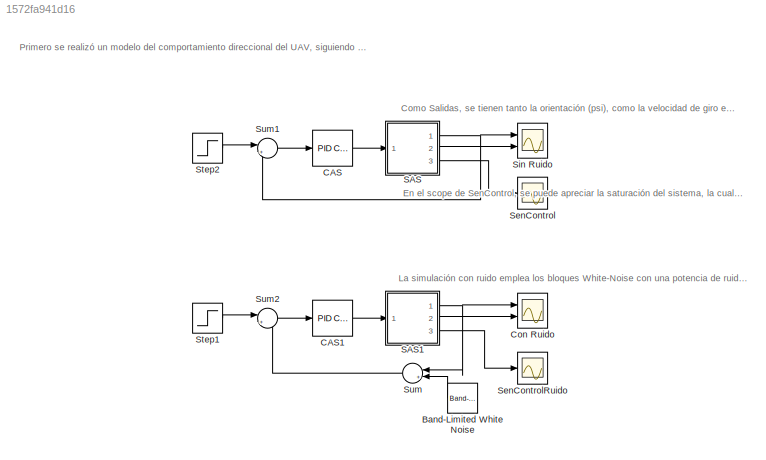
MODEL slx_1572fa941d16
KIND model
CONFIG AbsTol = auto
CONFIG EnableMultiTasking = off
CONFIG FixedStep = auto
CONFIG MaxStep = auto
CONFIG MinStep = auto
CONFIG RelTol = 1e-3
CONFIG SampleTimeConstraint = Unconstrained
CONFIG SolverName = VariableStepAuto
CONFIG StartTime = 0.0
CONFIG StopTime = 15
BLOCK [Reference] Band-Limited White Noise  REF=simulink/Sources/Band-Limited
White Noise
  Ports = [0, 1]
  SourceBlock = simulink/Sources/Band-Limited\nWhite Noise
  SourceProductBaseCode = SL
  SourceType = Band-Limited White Noise.
BLOCK [Reference] CAS  REF=slpidlib/PID Controller
  Ports = [1, 1]
  SourceBlock = slpidlib/PID Controller
  SourceProductBaseCode = SL
  SourceType = PID 1dof
BLOCK [Reference] CAS1  REF=slpidlib/PID Controller
  Ports = [1, 1]
  SourceBlock = slpidlib/PID Controller
  SourceProductBaseCode = SL
  SourceType = PID 1dof
BLOCK [Scope] Con Ruido
  Floating = off
  NumInputPorts = 2
  Ports = [2]
  ScopeSpecificationString = Simulink.scopes.TimeScopeBlockCfg('CurrentConfiguration', extmgr.ConfigurationSet(extmgr.Configuration('Core','General UI',true),extmgr.Configuration('Core','Source UI',true),extmgr.Configuration('Sources','WiredSimulink',true,'DataLoggingVariableName','ScopeData1'),extmgr.Configuration('Visuals','Time Domain',true,'PlotType','Line','SerializedDisplays',{struct('MinYLimReal','-17.09732','MaxYLimRe...<+2087ch>
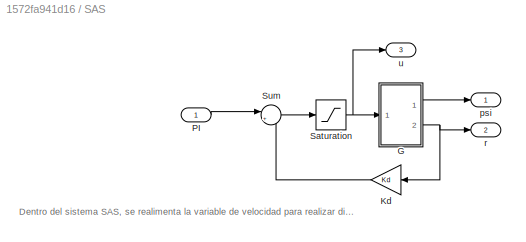
BLOCK [SubSystem] SAS
  Ports = [1, 3]
  RequestExecContextInheritance = off
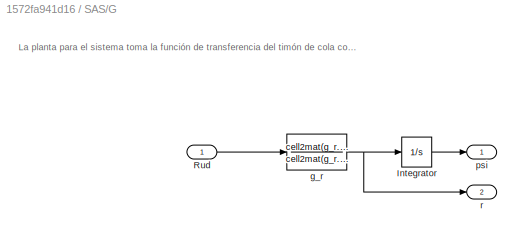
BLOCK [SubSystem] SAS/G
  Ports = [1, 2]
  RequestExecContextInheritance = off
BLOCK [Integrator] SAS/G/Integrator
  Ports = [1, 1]
BLOCK [Inport] SAS/G/Rud
BLOCK [TransferFcn] SAS/G/g_r
  Denominator = cell2mat(g_r.Denominator)
  Numerator = cell2mat(g_r.Numerator)
BLOCK [Outport] SAS/G/psi
BLOCK [Outport] SAS/G/r
  Port = 2
BLOCK [Gain] SAS/Kd
  Gain = Kd
BLOCK [Inport] SAS/PI
BLOCK [Saturate] SAS/Saturation
  LowerLimit = -30
  UpperLimit = 30
BLOCK [Sum] SAS/Sum
  Inputs = |+-
  Ports = [2, 1]
BLOCK [Outport] SAS/psi
BLOCK [Outport] SAS/r
  Port = 2
BLOCK [Outport] SAS/u
  Port = 3
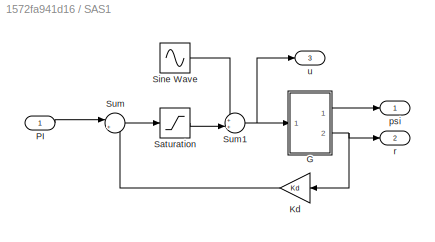
BLOCK [SubSystem] SAS1
  Ports = [1, 3]
  RequestExecContextInheritance = off
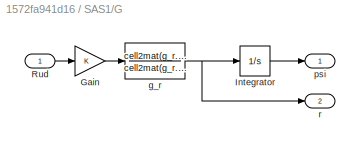
BLOCK [SubSystem] SAS1/G
  Ports = [1, 2]
  RequestExecContextInheritance = off
BLOCK [Gain] SAS1/G/Gain
BLOCK [Integrator] SAS1/G/Integrator
  Ports = [1, 1]
BLOCK [Inport] SAS1/G/Rud
BLOCK [TransferFcn] SAS1/G/g_r
  Denominator = cell2mat(g_r.Denominator)
  Numerator = cell2mat(g_r.Numerator)
BLOCK [Outport] SAS1/G/psi
BLOCK [Outport] SAS1/G/r
  Port = 2
BLOCK [Gain] SAS1/Kd
  Gain = Kd
BLOCK [Inport] SAS1/PI
BLOCK [Saturate] SAS1/Saturation
  LowerLimit = -30
  UpperLimit = 30
BLOCK [Sin] SAS1/Sine Wave
  Frequency = 12*pi
  Ports = [0, 1]
  SampleTime = 0
BLOCK [Sum] SAS1/Sum
  Inputs = |+-
  Ports = [2, 1]
BLOCK [Sum] SAS1/Sum1
  Inputs = ++|
  Ports = [2, 1]
BLOCK [Outport] SAS1/psi
BLOCK [Outport] SAS1/r
  Port = 2
BLOCK [Outport] SAS1/u
  Port = 3
BLOCK [Scope] SenControl
  Floating = off
  NumInputPorts = 1
  Ports = [1]
  ScopeSpecificationString = Simulink.scopes.TimeScopeBlockCfg('CurrentConfiguration', extmgr.ConfigurationSet(extmgr.Configuration('Core','General UI',true),extmgr.Configuration('Core','Source UI',true),extmgr.Configuration('Sources','WiredSimulink',true,'DataLoggingVariableName','ScopeData1'),extmgr.Configuration('Visuals','Time Domain',true,'SerializedDisplays',{struct('MinYLimReal','-9.0798','MaxYLimReal','34.3422','YLabe...<+1586ch>
BLOCK [Scope] SenControlRuido
  Floating = off
  NumInputPorts = 1
  Ports = [1]
  ScopeSpecificationString = Simulink.scopes.TimeScopeBlockCfg('CurrentConfiguration', extmgr.ConfigurationSet(extmgr.Configuration('Core','General UI',true),extmgr.Configuration('Core','Source UI',true),extmgr.Configuration('Sources','WiredSimulink',true,'DataLoggingVariableName','ScopeData2'),extmgr.Configuration('Visuals','Time Domain',true,'SerializedDisplays',{struct('MinYLimReal','-37.9431','MaxYLimReal','31.5427','YLab...<+1493ch>
BLOCK [Scope] Sin Ruido
  Floating = off
  NumInputPorts = 2
  Ports = [2]
  ScopeSpecificationString = Simulink.scopes.TimeScopeBlockCfg('CurrentConfiguration', extmgr.ConfigurationSet(extmgr.Configuration('Core','General UI',true),extmgr.Configuration('Core','Source UI',true),extmgr.Configuration('Sources','WiredSimulink',true,'DataLoggingVariableName','ScopeData1'),extmgr.Configuration('Visuals','Time Domain',true,'PlotType','Line','SerializedDisplays',{struct('MinYLimReal','-10.33175','MaxYLimRe...<+2071ch>
BLOCK [Step] Step1
  After = 40
  SampleTime = 0
  Time = 0
BLOCK [Step] Step2
  After = 40
  SampleTime = 0
  Time = 0
BLOCK [Sum] Sum
  Inputs = |++
  NameLocation = top
  Ports = [2, 1]
BLOCK [Sum] Sum1
  Inputs = |+-
  Ports = [2, 1]
BLOCK [Sum] Sum2
  Inputs = |+-
  Ports = [2, 1]
ANNOTATION (root): Como Salidas, se tienen tanto la orientación (psi), como la velocidad de giro en el eje z (r) y la acción de control (u).
ANNOTATION (root): En el scope de SenControl, se puede apreciar la saturación del sistema, la cual solo ocurre al comienzo de la acción de control.
ANNOTATION (root): La simulación con ruido emplea los bloques White-Noise con una potencia de ruido de 0.002, y al interior del SAS, se presenta la perturbación de entrada como una señal sinusoidal de 6Hz y amplitud unitaria, la cual se suma a la acción de control.
ANNOTATION (root): Primero se realizó un modelo del comportamiento direccional del UAV, siguiendo el esquema de PI+D. En este caso, la acción de amortiguamiento corresponde al SAS, y la acción de seguimiento de la referencia corresponde al CAS.
ANNOTATION SAS: Dentro del sistema SAS, se realimenta la variable de velocidad para realizar directamente la acción derivativa respecto a la posición de la aeronave. Así mismo, a la entrada Rud de la planta del sistema Direccional, se tiene una saturación de ± 30°.
ANNOTATION SAS/G: La planta para el sistema toma la función de transferencia del timón de cola como entrada y la velocidad de giro como salida. Así, al usar un integrador, se puede obtener la posición del sistema.
LINE Band-Limited White Noise:1 -> Sum:2
LINE CAS1:1 -> SAS1:1
LINE CAS:1 -> SAS:1
LINE SAS/G/Integrator:1 -> SAS/G/psi:1
LINE SAS/G/Rud:1 -> SAS/G/g_r:1
NET SAS/G/g_r:1 -> SAS/G/Integrator:1, SAS/G/r:1
LINE SAS/G:1 -> SAS/psi:1
NET SAS/G:2 -> SAS/Kd:1, SAS/r:1
LINE SAS/Kd:1 -> SAS/Sum:2
LINE SAS/PI:1 -> SAS/Sum:1
NET SAS/Saturation:1 -> SAS/G:1, SAS/u:1
LINE SAS/Sum:1 -> SAS/Saturation:1
LINE SAS1/G/Gain:1 -> SAS1/G/g_r:1
LINE SAS1/G/Integrator:1 -> SAS1/G/psi:1
LINE SAS1/G/Rud:1 -> SAS1/G/Gain:1
NET SAS1/G/g_r:1 -> SAS1/G/Integrator:1, SAS1/G/r:1
LINE SAS1/G:1 -> SAS1/psi:1
NET SAS1/G:2 -> SAS1/Kd:1, SAS1/r:1
LINE SAS1/Kd:1 -> SAS1/Sum:2
LINE SAS1/PI:1 -> SAS1/Sum:1
LINE SAS1/Saturation:1 -> SAS1/Sum1:2
LINE SAS1/Sine Wave:1 -> SAS1/Sum1:1
NET SAS1/Sum1:1 -> SAS1/G:1, SAS1/u:1
LINE SAS1/Sum:1 -> SAS1/Saturation:1
NET SAS1:1 -> Con Ruido:1, Sum:1
LINE SAS1:2 -> Con Ruido:2
LINE SAS1:3 -> SenControlRuido:1
NET SAS:1 -> Sin Ruido:1, Sum1:2
LINE SAS:2 -> Sin Ruido:2
LINE SAS:3 -> SenControl:1
LINE Step1:1 -> Sum2:1
LINE Step2:1 -> Sum1:1
LINE Sum1:1 -> CAS:1
LINE Sum2:1 -> CAS1:1
LINE Sum:1 -> Sum2:2
note: NET lines group one-source signal fan-out (src -> all destinations, sorted); 1:1 wires keep LINE
